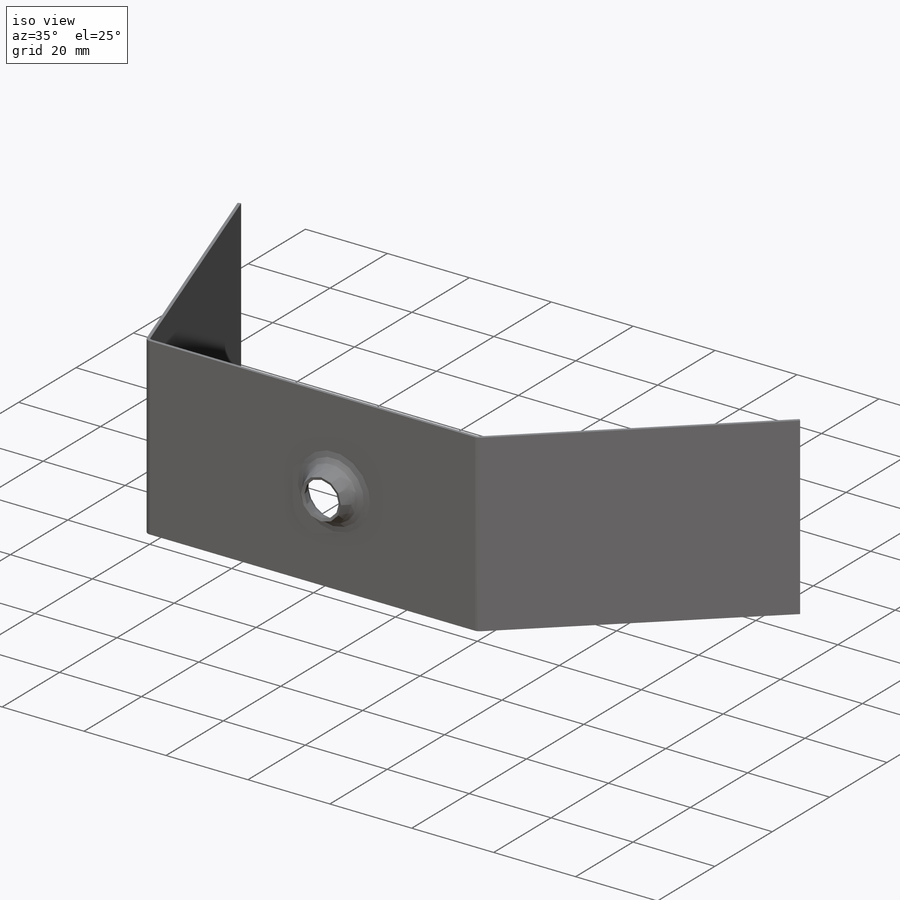
[diagram: iso view]
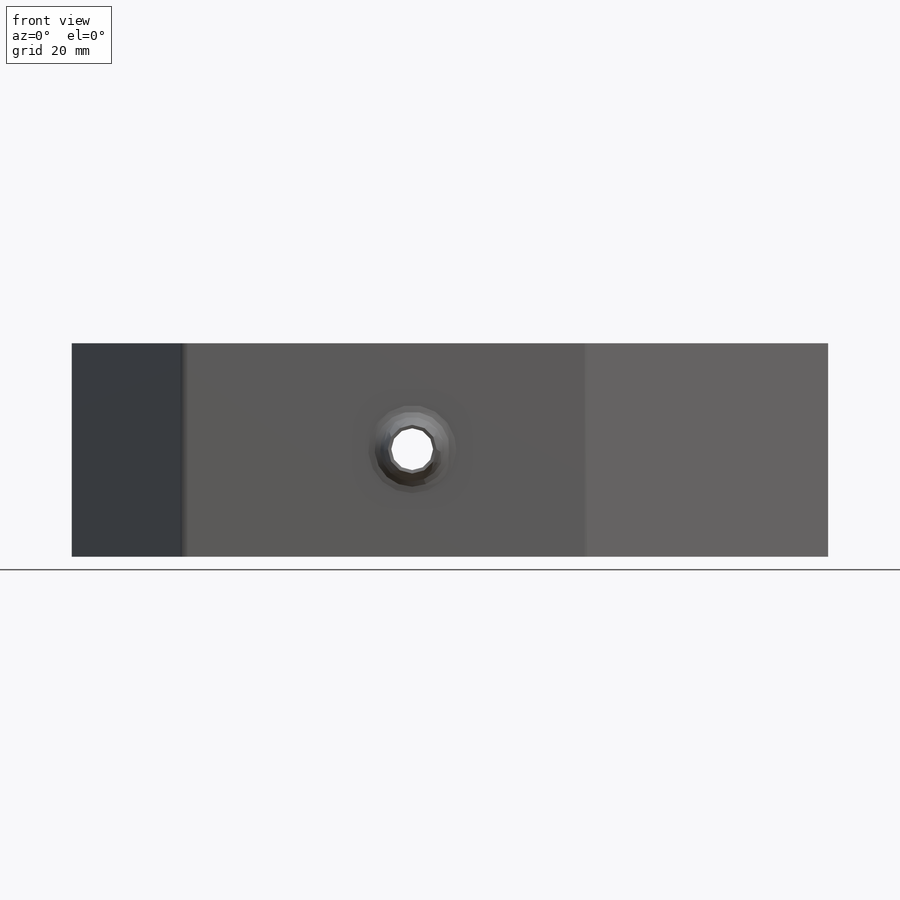
[diagram: front view]
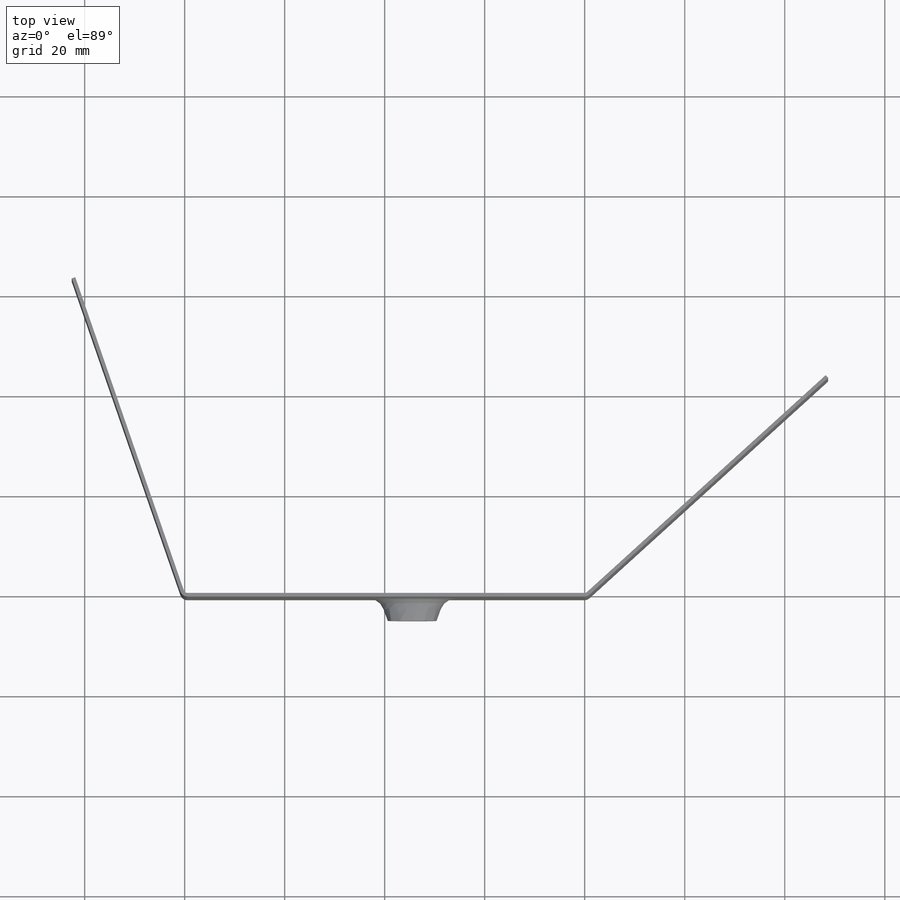
[diagram: top view]
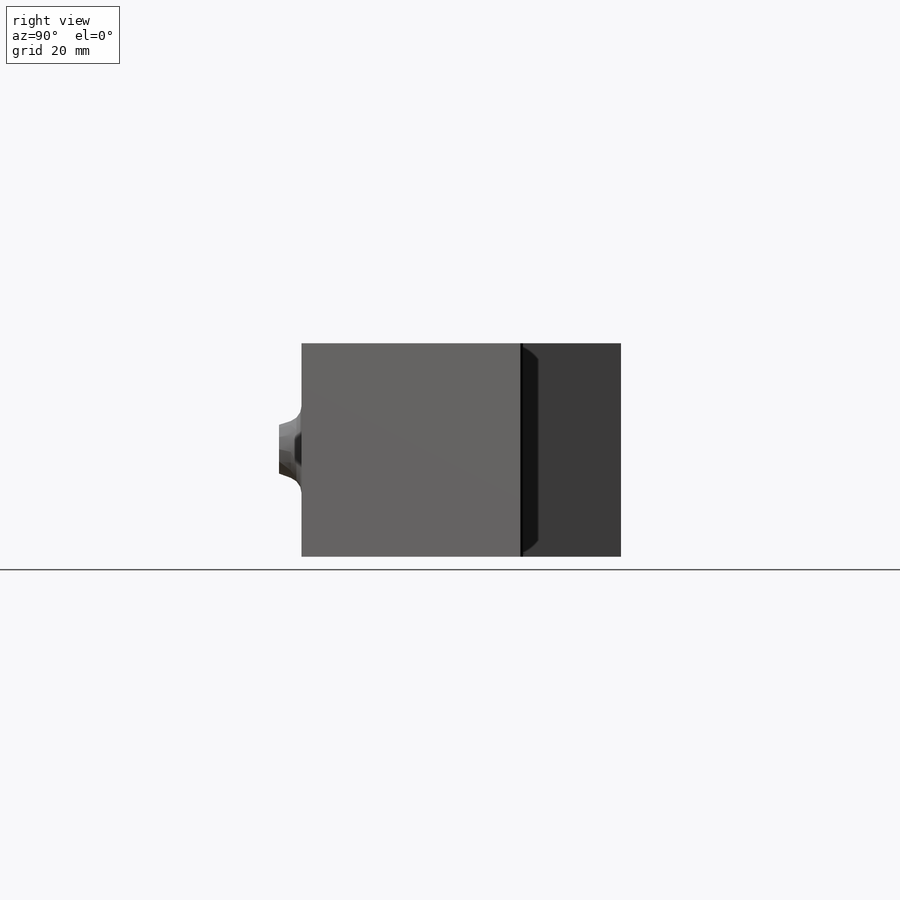
[diagram: right view]
SOLIDWORKS PART (.sldprt)
format: sldprt  version: not decoded by parser v0  size: 258,048 bytes
history: native  units: mm
features: sketch x9, plane x6, sheet_metal_op x3, material x2, extrude x1, revolve x1, fillet x1, cut_extrude x1 + 2 further entries (+16 scaffold rows collapsed; 1 parser-record rows omitted)
feature tree (43):
  scaffold x16  (default folders/planes/origin — collapsed)
  material  "Material <nicht festgelegt>"
  material  "Material <not specified>"
  plane  "Vorne"
  plane  "Oben"
  plane  "Rechts"
  sketch  "Skizze1"
  sheet_metal_op  "Blech1"
  sheet_metal_op  "Basis-Blech1"
  sheet_metal_op  "Basisbiegung2"
  sketch  "Skizze4"
  sketch  "Skizze5"
  plane  "Plane1"
  plane  "Plane2"
  plane  "Plane3"
  sketch  "Sketch1"  dims[D1=50.0mm D2=1.0mm]
  extrude  "Base-Extrude"  Depth=50mm
  sketch  "Sketch2"  dims[Large Diameter=12.0mm Height from Drop Face=5.0mm D3=~6.198008mm Countersink Half Angle=20.0deg]
  revolve  "Boss-Revolve1"  Angle=360deg Large Diameter_1=12mm D1_1=360deg
  fillet  "Fillet1"  Radius=4mm Fillet Radius=4mm
  sketch  "Sketch3"  dims[D1=0.0mm]
  cut_extrude  "Cut-Extrude1"  [1 undecoded]
  sketch  "Orientation sketch"  dims[D1=0.0mm]
  "Abwicklung1"
  sketch  "Biegung-Linien1"
  sketch  "Rahmen1"
  "Abwickeln-<Basisbiegung2>1"
  parser-record x1  (decoder bookkeeping rows leaked as tree rows — omitted from the tree; the rows remain in map.json)
decode coverage: 7 of 16 modeling features carry decoded parameters; 2 rows unclassified (native names shown)
note: ~ marks probable driven/reference dimensions
note: 1 parameter value undecoded
note: suppression state not decoded; provenance and decode notes live in map.json
